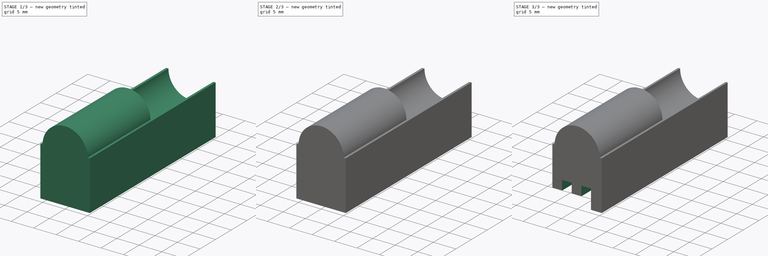
[diagram: build sequence overview — one tinted view per stage of 3, left to right]
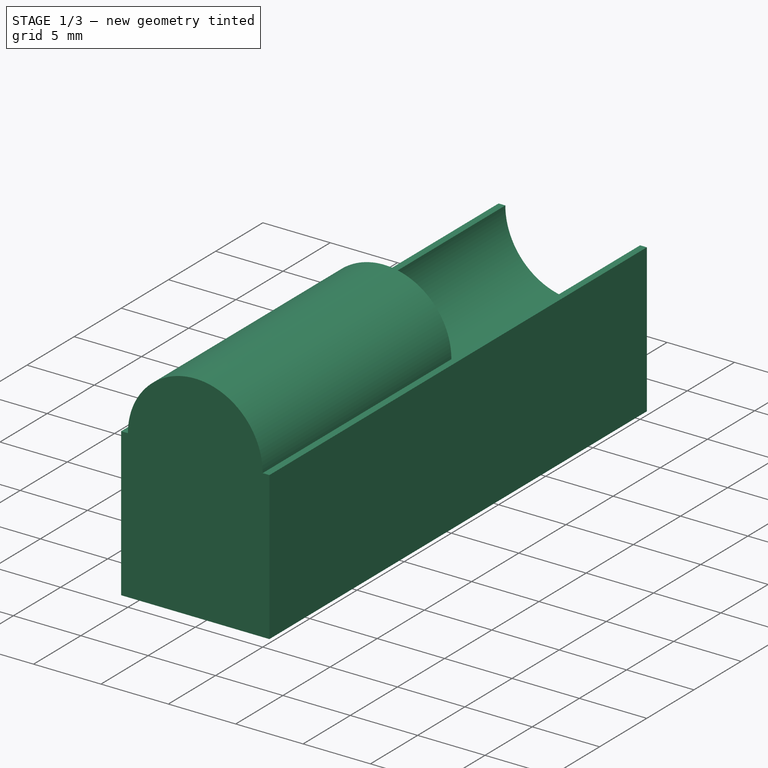
[diagram: stage 1 of 3 — iso view after this stage's code; geometry added in this stage tinted green]
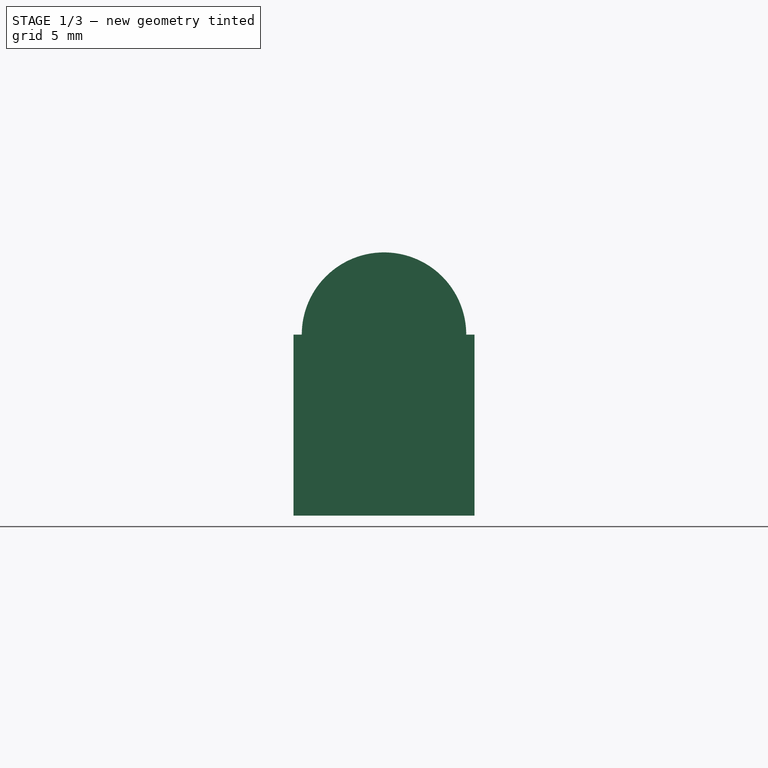
[diagram: stage 1 of 3 — front view after this stage's code; geometry added in this stage tinted green]
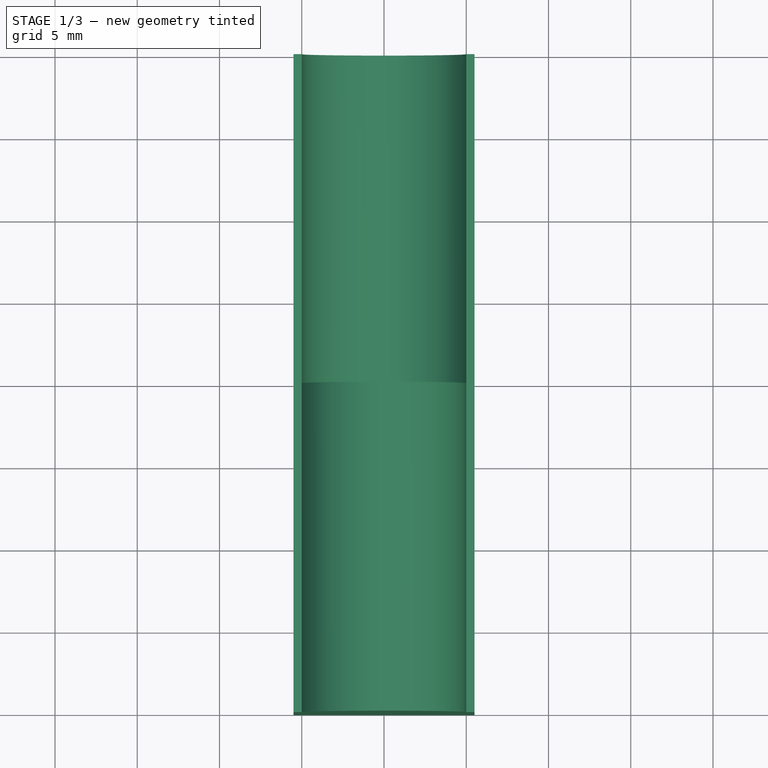
[diagram: stage 1 of 3 — top view after this stage's code; geometry added in this stage tinted green]
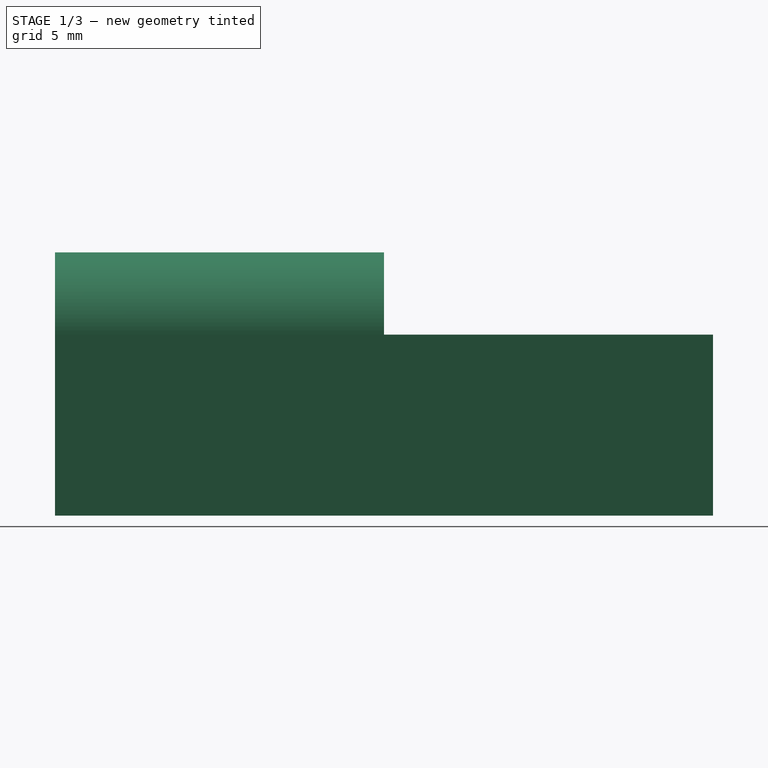
[diagram: stage 1 of 3 — right view after this stage's code; geometry added in this stage tinted green]
FCSTD DOCUMENT  (FreeCAD 0.20R29177 (Git))
Label: Support02
License: All rights reserved
LicenseURL: http://en.wikipedia.org/wiki/All_rights_reserved
objects: Sketcher::SketchObject×5, PartDesign::Pocket×4, PartDesign::Pad×1, PartDesign::Body×1
note: 16 computed .brp shape members not serialized (recipe doc carries the construction recipe); baked Part::Feature solids carry a one-line shape summary decoded from their .brp

FEATURE [Sketcher::SketchObject] Sketch
  FullyConstrained = false
  MapMode = 5
  Placement = pos=(0,0,0) rot=(1,0,0;1.5708rad)
  Support = -> [XZ_Plane]
  sketch-geometry (6):
    g0: ArcOfCircle CenterX=0 CenterY=0 CenterZ=0 NormalX=0 NormalY=0 NormalZ=1 AngleXU=0 Radius=5 StartAngle=0 EndAngle=3.14159
    g1: LineSegment StartX=-5.5 StartY=0 StartZ=0 EndX=-5 EndY=0 EndZ=0
    g2: LineSegment StartX=5.5 StartY=0 StartZ=0 EndX=5.5 EndY=-11 EndZ=0
    g3: LineSegment StartX=5.5 StartY=-11 StartZ=0 EndX=-5.5 EndY=-11 EndZ=0
    g4: LineSegment StartX=-5.5 StartY=-11 StartZ=0 EndX=-5.5 EndY=0 EndZ=0
    g5: LineSegment StartX=5 StartY=0 StartZ=0 EndX=5.5 EndY=0 EndZ=0
  constraints (17):
    c: Radius(g0) = 5
    c: Coincident(g5,g2)
    c: Coincident(g2,g3)
    c: Coincident(g3,g4)
    c: Coincident(g4,g1)
    c: Horizontal(g1)
    c: Vertical(g2)
    c: Vertical(g4)
    c: Symmetric(g3,g2,g-2)
    c: DistanceX(g3,g3) = 11
    c: DistanceY(g2,g2) = 11
    c: DistanceY(g-1,g0) = 0
    c: DistanceY(g-1,g0) = 0
    c: PointOnObject(g5,g0)
    c: Tangent(g1,g5)
    c: Coincident(g0,g-1)
    c: Coincident(g1,g0)
FEATURE [PartDesign::Pad] Pad  label="Main"
  AllowMultiFace = false
  Direction = (1,1,1)
  Length = 40
  Length2 = 100
  Placement = pos=(0,0,0) rot=(1,0,0;1.5708rad)
  Profile = -> Sketch
  Type = 0
FEATURE [Sketcher::SketchObject] Sketch001
  FullyConstrained = false
  MapMode = 5
  Placement = pos=(0,0,0) rot=(-1,0,0;1.5708rad)
  Support = -> [Pad]
  sketch-geometry (1):
    g0: Circle CenterX=0 CenterY=0 CenterZ=0 NormalX=0 NormalY=0 NormalZ=1 AngleXU=0 Radius=5
  constraints (2):
    c: Radius(g0) = 5
    c: Coincident(g0,g-1)
FEATURE [PartDesign::Pocket] Pocket  label="HingeMain"
  AllowMultiFace = false
  BaseFeature = -> Pad
  Direction = (1,1,1)
  Length = 20
  Length2 = 100
  Placement = pos=(0,0,0) rot=(1,0,0;1.5708rad)
  Profile = -> Sketch001
  Type = 0
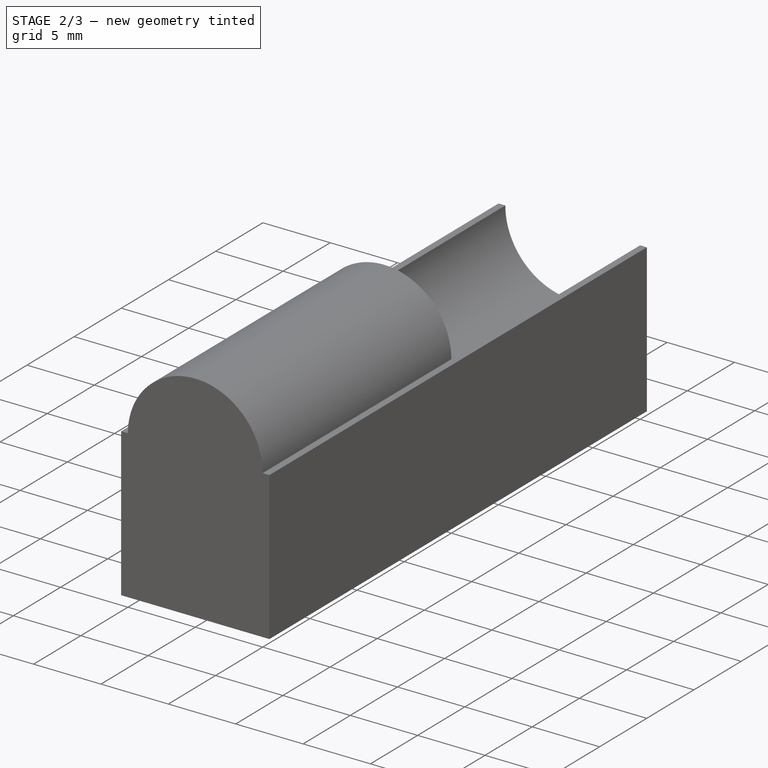
[diagram: stage 2 of 3 — iso view after this stage's code; geometry added in this stage tinted green]
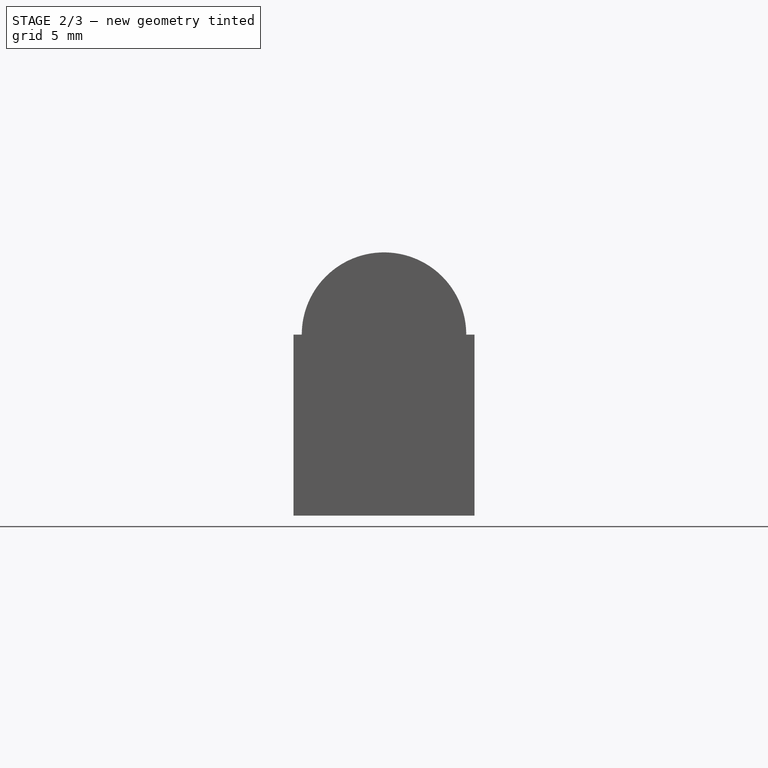
[diagram: stage 2 of 3 — front view after this stage's code; geometry added in this stage tinted green]
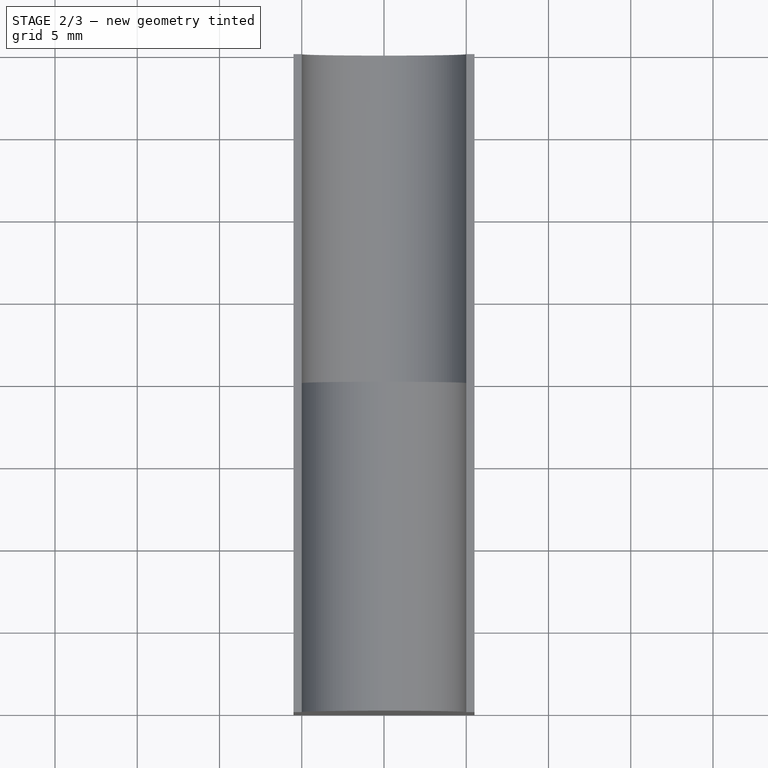
[diagram: stage 2 of 3 — top view after this stage's code; geometry added in this stage tinted green]
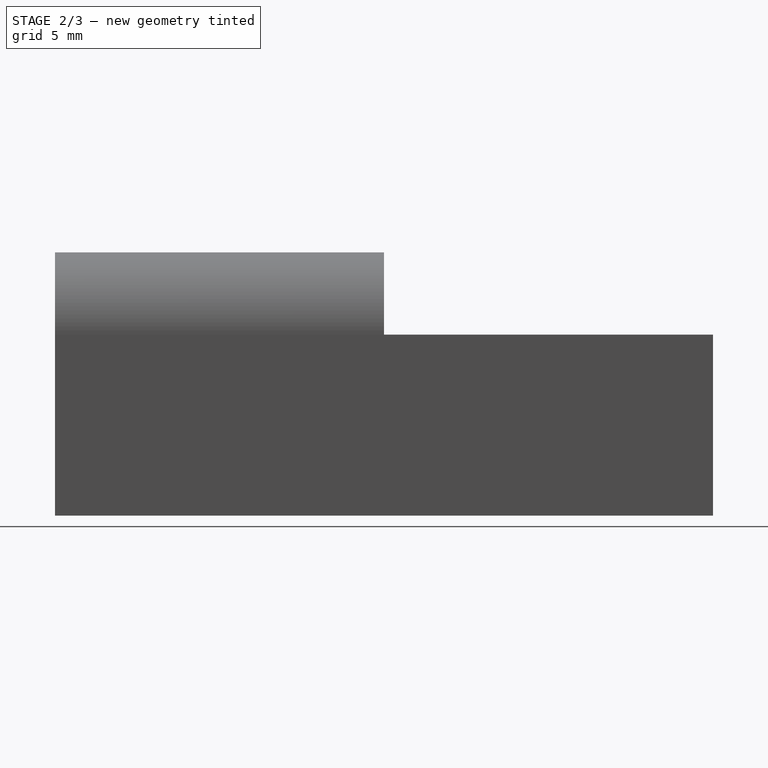
[diagram: stage 2 of 3 — right view after this stage's code; geometry added in this stage tinted green]
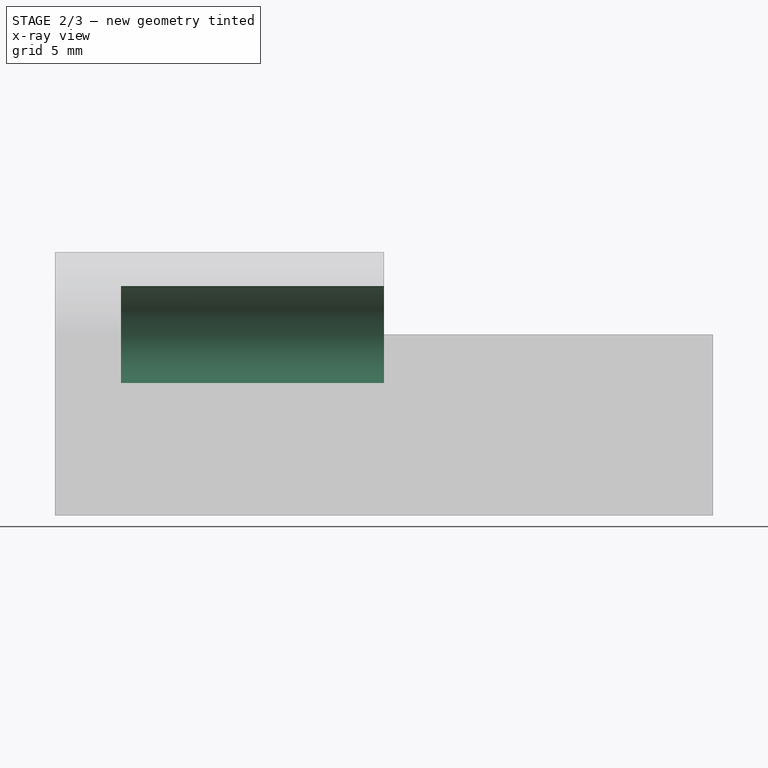
[diagram: stage 2 of 3 — x-ray composite at the right view; earlier geometry ghosted, this stage's added geometry solid]
FEATURE [Sketcher::SketchObject] Sketch002
  FullyConstrained = false
  MapMode = 5
  Placement = pos=(0,-20,1.32e-14) rot=(-1,0,0;1.5708rad)
  Support = -> [Pocket]
  sketch-geometry (1):
    g0: Circle CenterX=0 CenterY=0 CenterZ=0 NormalX=0 NormalY=0 NormalZ=1 AngleXU=0 Radius=2.95
  constraints (1):
    c: Radius(g0) = 2.95
FEATURE [PartDesign::Pocket] Pocket001  label="HingeHole"
  AllowMultiFace = false
  BaseFeature = -> Pocket
  Direction = (1,1,1)
  Length = 16
  Length2 = 100
  Placement = pos=(0,0,0) rot=(1,0,0;1.5708rad)
  Profile = -> Sketch002
  Type = 0
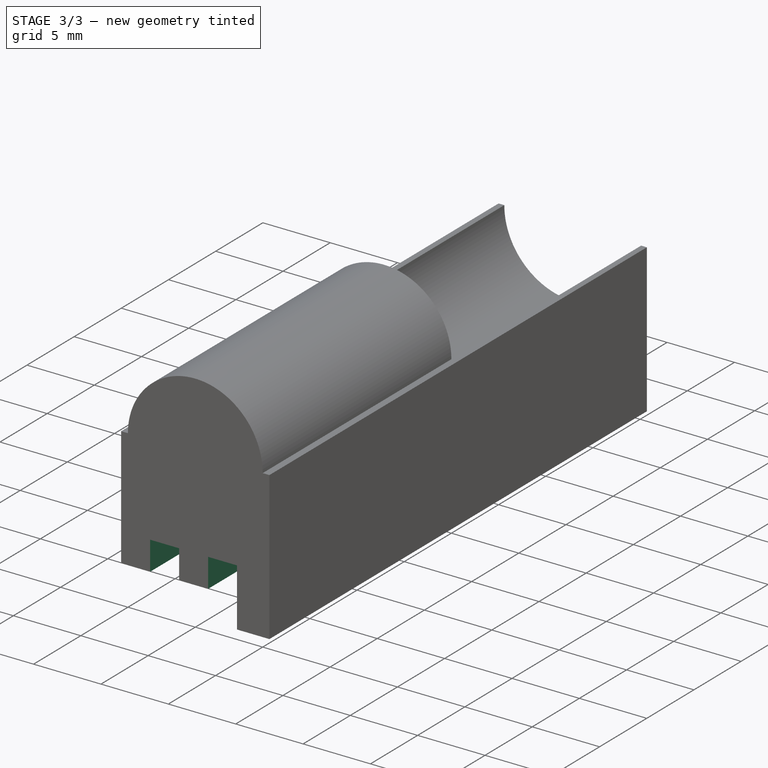
[diagram: stage 3 of 3 — iso view after this stage's code; geometry added in this stage tinted green]
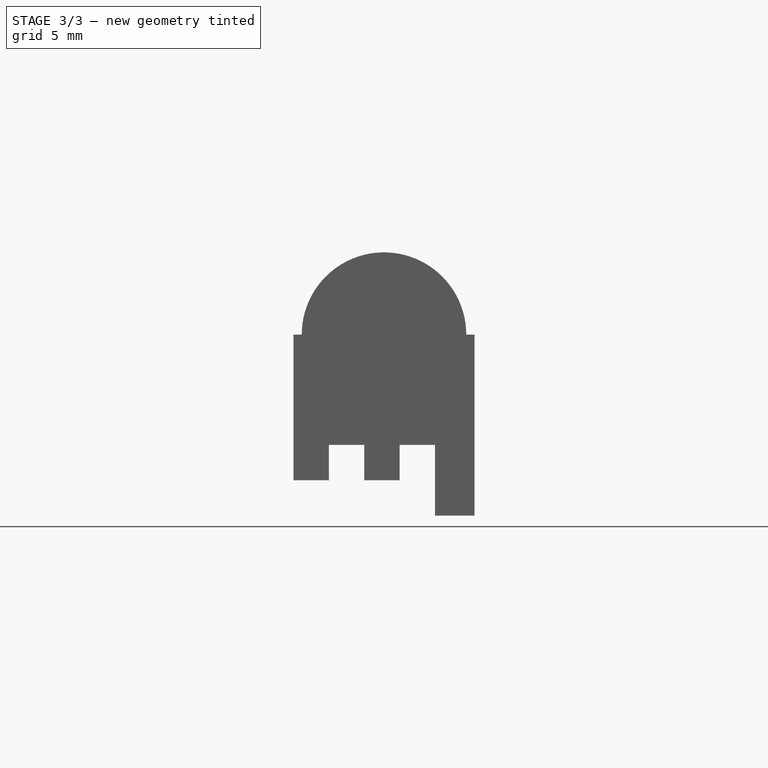
[diagram: stage 3 of 3 — front view after this stage's code; geometry added in this stage tinted green]
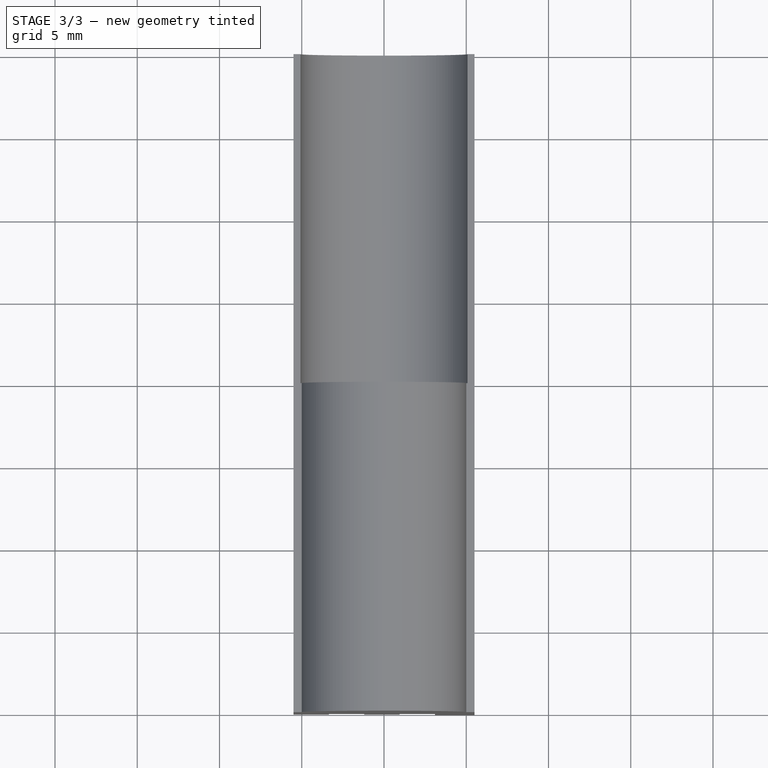
[diagram: stage 3 of 3 — top view after this stage's code; geometry added in this stage tinted green]
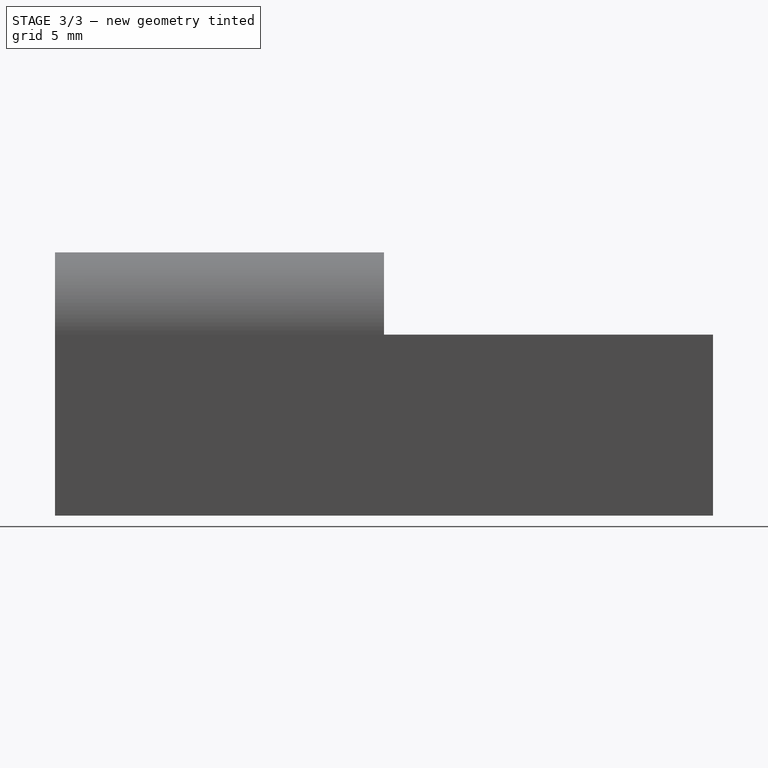
[diagram: stage 3 of 3 — right view after this stage's code; geometry added in this stage tinted green]
FEATURE [Sketcher::SketchObject] Sketch003
  ExternalGeometry = -> [Pocket001]
  FullyConstrained = false
  MapMode = 5
  Placement = pos=(0,0,0) rot=(-1,0,0;1.5708rad)
  Support = -> [Pocket001]
  sketch-geometry (10):
    g0: LineSegment StartX=-5.5 StartY=11 StartZ=0 EndX=3.1 EndY=11 EndZ=0
    g1: LineSegment StartX=3.1 StartY=11 StartZ=0 EndX=3.1 EndY=6.7 EndZ=0
    g2: LineSegment StartX=3.1 StartY=6.7 StartZ=0 EndX=0.95 EndY=6.7 EndZ=0
    g3: LineSegment StartX=-5.5 StartY=8.85 StartZ=0 EndX=-5.5 EndY=11 EndZ=0
    g4: LineSegment StartX=-1.2 StartY=6.7 StartZ=0 EndX=-1.2 EndY=8.85 EndZ=0
    g5: LineSegment StartX=-1.2 StartY=8.85 StartZ=0 EndX=0.95 EndY=8.85 EndZ=0
    g6: LineSegment StartX=0.95 StartY=8.85 StartZ=0 EndX=0.95 EndY=6.7 EndZ=0
    g7: LineSegment StartX=-5.5 StartY=8.85 StartZ=0 EndX=-3.35 EndY=8.85 EndZ=0
    g8: LineSegment StartX=-3.35 StartY=8.85 StartZ=0 EndX=-3.35 EndY=6.7 EndZ=0
    g9: LineSegment StartX=-1.2 StartY=6.7 StartZ=0 EndX=-3.35 EndY=6.7 EndZ=0
  constraints (29):
    c: Coincident(g3,g7)
    c: Coincident(g0,g3)
    c: Coincident(g8,g9)
    c: Coincident(g7,g8)
    c: Coincident(g4,g9)
    c: Coincident(g4,g5)
    c: Coincident(g2,g6)
    c: Coincident(g5,g6)
    c: Coincident(g1,g2)
    c: Coincident(g0,g1)
    c: DistanceY(g3,g3) = 2.15
    c: Coincident(g0,g-4)
    c: Parallel(g7,g5)
    c: Parallel(g5,g0)
    c: Parallel(g0,g2)
    c: Parallel(g2,g9)
    c: Parallel(g1,g6)
    c: Parallel(g6,g4)
    c: Parallel(g4,g8)
    c: DistanceY(g4,g0) = 2.15
    c: PointOnObject(g0,g-4)
    c: Parallel(g8,g3)
    c: Parallel(g3,g-3)
    c: DistanceY(g6,g6) = 2.15
    c: DistanceY(g4,g4) = 2.15
    c: DistanceX(g2,g2) = 2.15
    c: DistanceX(g9,g9) = 2.15
    c: DistanceX(g5,g5) = 2.15
    c: DistanceX(g7,g7) = 2.15
FEATURE [PartDesign::Pocket] Pocket002  label="Hook"
  AllowMultiFace = false
  BaseFeature = -> Pocket001
  Direction = (1,1,1)
  Length = 5
  Length2 = 100
  Placement = pos=(0,0,0) rot=(1,0,0;1.5708rad)
  Profile = -> Sketch003
  Type = 1
FEATURE [Sketcher::SketchObject] Sketch004
  FullyConstrained = false
  MapMode = 5
  Placement = pos=(0,0,0) rot=(-1,0,0;1.5708rad)
  Support = -> [Pocket002]
  sketch-geometry (2):
    g0: ArcOfCircle CenterX=0 CenterY=0 CenterZ=0 NormalX=0 NormalY=0 NormalZ=1 AngleXU=0 Radius=5.075 StartAngle=0 EndAngle=3.14159
    g1: LineSegment StartX=-5.075 StartY=6e-16 StartZ=0 EndX=5.075 EndY=0 EndZ=0
  constraints (6):
    c: PointOnObject(g0,g-1)
    c: Coincident(g0,g-1)
    c: PointOnObject(g0,g-1)
    c: Radius(g0) = 5.075
    c: Coincident(g1,g0)
    c: Coincident(g1,g0)
FEATURE [PartDesign::Pocket] Pocket003  label="HingeOffset"
  AllowMultiFace = false
  BaseFeature = -> Pocket002
  Direction = (1,1,1)
  Length = 20
  Length2 = 100
  Placement = pos=(0,0,0) rot=(1,0,0;1.5708rad)
  Profile = -> Sketch004
  Type = 0
FEATURE [PartDesign::Body] Body
  Group = -> [Sketch,Pad,Sketch001,Pocket,Sketch002,Pocket001,Sketch003,Pocket002,Sketch004,Pocket003]
  Origin = -> Origin
  Tip = -> Pocket003
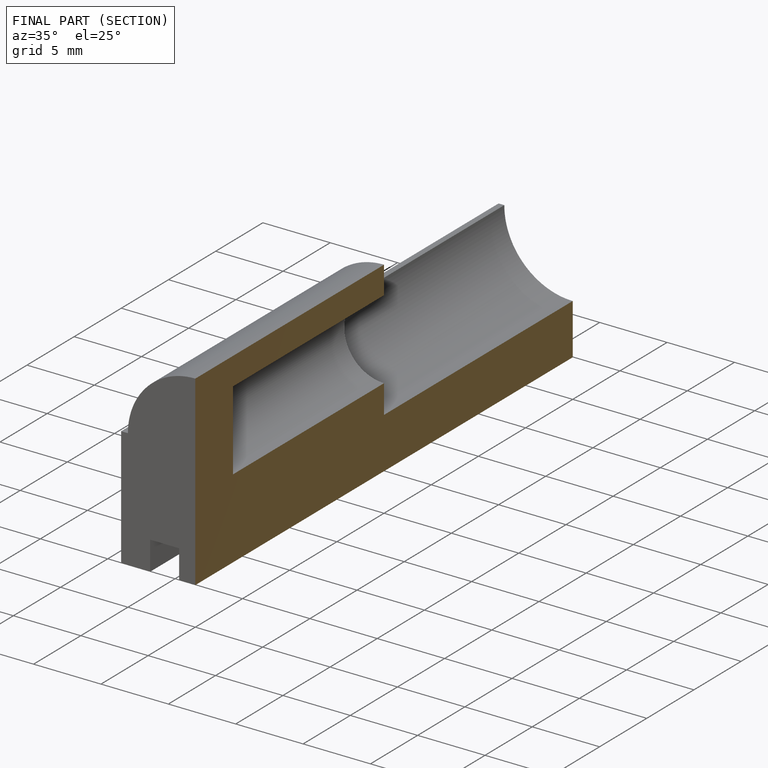
[diagram: finished part — half-section view (interior)]
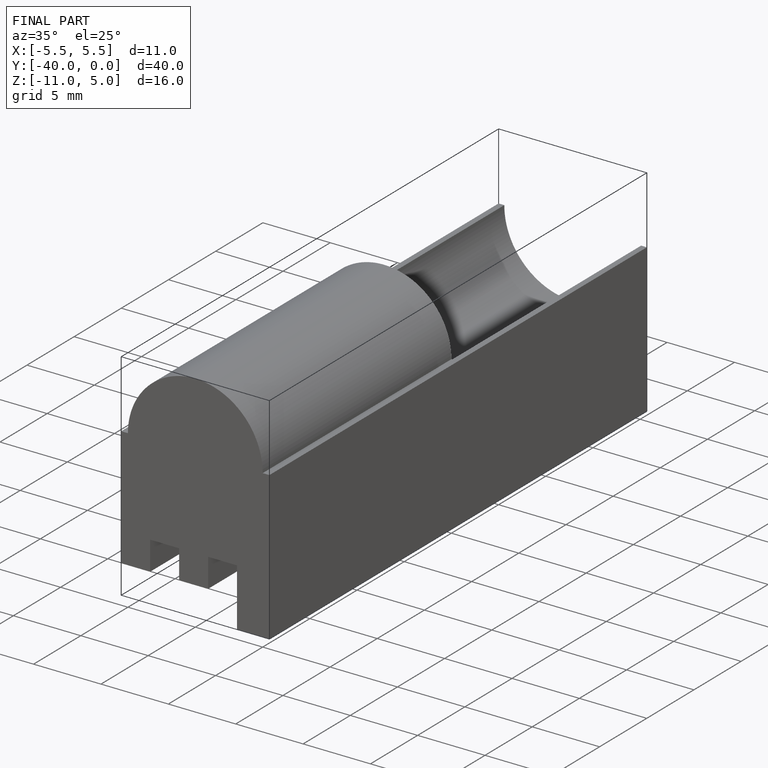
[diagram: finished part — iso view with bounding-box wireframe]
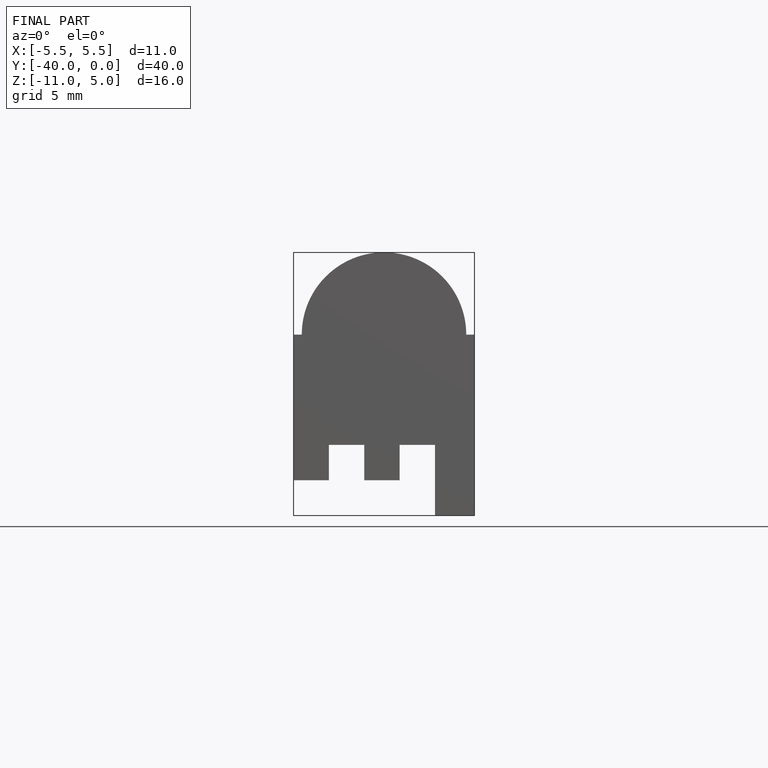
[diagram: finished part — front view with bounding-box wireframe]
